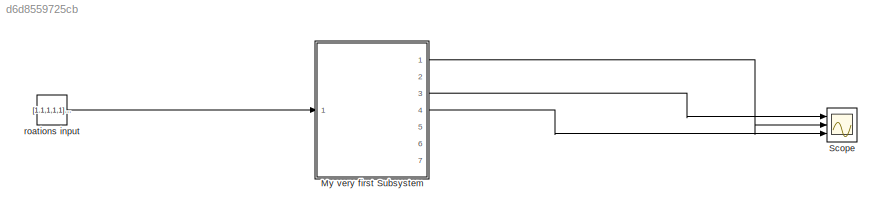
MODEL slx_d6d8559725cb
KIND model
CONFIG AbsTol = auto
CONFIG EnableMultiTasking = off
CONFIG FixedStep = auto
CONFIG InitFcn = create_vars;
CONFIG MaxStep = auto
CONFIG MinStep = auto
CONFIG RelTol = 1e-3
CONFIG SampleTimeConstraint = Unconstrained
CONFIG SolverName = VariableStepAuto
CONFIG StartTime = 0.0
CONFIG StopTime = 10.0
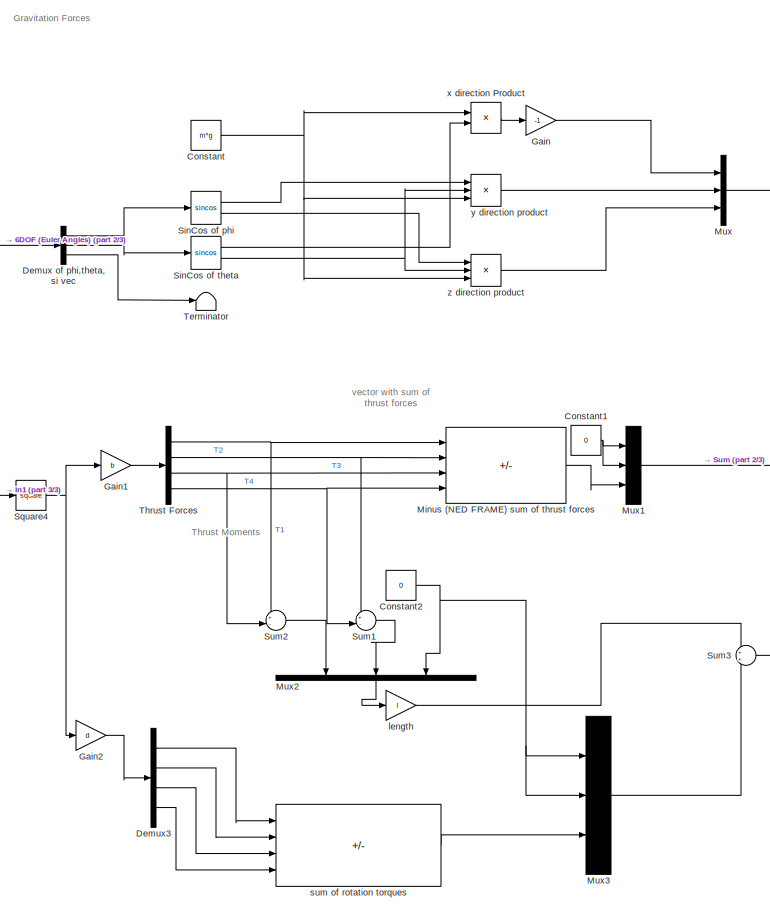
[diagram: My very first Subsystem - part 1/3, center side, full height]
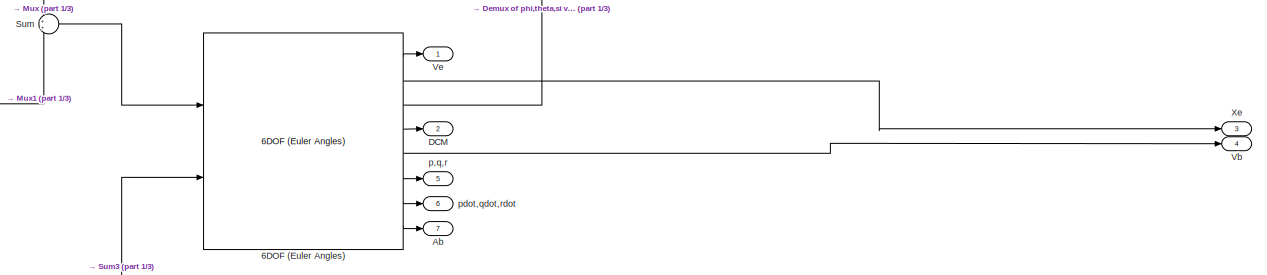
[diagram: My very first Subsystem - part 2/3, middle right region]
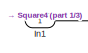
[diagram: My very first Subsystem - part 3/3, middle left region]
BLOCK [SubSystem] My very first Subsystem
  Ports = [1, 7]
  RequestExecContextInheritance = off
BLOCK [Reference] My very first Subsystem/6DOF (Euler Angles)  REF=shared6dof/6DOF (Euler Angles)
  Ports = [2, 8]
  SourceBlock = shared6dof/6DOF (Euler Angles)
  SourceProductBaseCode = AE,PW,DR,MT,VE
  SourceType = 6DOF EoM (Body Axis)
BLOCK [Outport] My very first Subsystem/Ab
  Port = 7
BLOCK [Constant] My very first Subsystem/Constant
  Value = m*g
BLOCK [Constant] My very first Subsystem/Constant1
  Value = 0
BLOCK [Constant] My very first Subsystem/Constant2
  Value = 0
BLOCK [Outport] My very first Subsystem/DCM
  Port = 2
BLOCK [Demux] My very first Subsystem/Demux of phi,theta,si vec
  Outputs = 3
  Ports = [1, 3]
BLOCK [Demux] My very first Subsystem/Demux3
  Ports = [1, 4]
BLOCK [Gain] My very first Subsystem/Gain
  Gain = -1
BLOCK [Gain] My very first Subsystem/Gain1
  Gain = b
BLOCK [Gain] My very first Subsystem/Gain2
  Gain = d
BLOCK [Inport] My very first Subsystem/In1
BLOCK [Sum] My very first Subsystem/Minus (NED FRAME) sum of thrust forces
  IconShape = rectangular
  Inputs = ----
  Ports = [4, 1]
BLOCK [Mux] My very first Subsystem/Mux
  DisplayOption = bar
  Inputs = 3
  Ports = [3, 1]
BLOCK [Mux] My very first Subsystem/Mux1
  DisplayOption = bar
  Inputs = 3
  Ports = [3, 1]
BLOCK [Mux] My very first Subsystem/Mux2
  DisplayOption = bar
  Inputs = 3
  NameLocation = left
  Ports = [3, 1]
BLOCK [Mux] My very first Subsystem/Mux3
  DisplayOption = bar
  Inputs = 3
  Ports = [3, 1]
BLOCK [Trigonometry] My very first Subsystem/SinCos of phi
  Operator = sincos
  Ports = [1, 2]
BLOCK [Trigonometry] My very first Subsystem/SinCos of theta
  Operator = sincos
  Ports = [1, 2]
BLOCK [Math] My very first Subsystem/Square4
  NameLocation = right
  Operator = square
  Ports = [1, 1]
BLOCK [Sum] My very first Subsystem/Sum
  Ports = [2, 1]
BLOCK [Sum] My very first Subsystem/Sum1
  Inputs = +-|
  Ports = [2, 1]
BLOCK [Sum] My very first Subsystem/Sum2
  Inputs = +-|
  Ports = [2, 1]
BLOCK [Sum] My very first Subsystem/Sum3
  Ports = [2, 1]
BLOCK [Terminator] My very first Subsystem/Terminator
BLOCK [Demux] My very first Subsystem/Thrust Forces
  Ports = [1, 4]
BLOCK [Outport] My very first Subsystem/Vb
  Port = 4
BLOCK [Outport] My very first Subsystem/Ve
BLOCK [Outport] My very first Subsystem/Xe
  Port = 3
BLOCK [Gain] My very first Subsystem/length
  Gain = l
BLOCK [Outport] My very first Subsystem/p,q,r
  Port = 5
BLOCK [Outport] My very first Subsystem/pdot,qdot,rdot
  Port = 6
BLOCK [Sum] My very first Subsystem/sum of rotation torques
  IconShape = rectangular
  Inputs = +-+-
  Ports = [4, 1]
BLOCK [Product] My very first Subsystem/x direction Product
  Ports = [2, 1]
BLOCK [Product] My very first Subsystem/y direction product
  Inputs = 3
  Ports = [3, 1]
BLOCK [Product] My very first Subsystem/z direction product
  Inputs = 3
  Ports = [3, 1]
BLOCK [Scope] Scope
  Floating = off
  NumInputPorts = 3
  Ports = [3]
  ScopeSpecificationString = Simulink.scopes.TimeScopeBlockCfg('CurrentConfiguration', extmgr.ConfigurationSet(extmgr.Configuration('Core','General UI',true),extmgr.Configuration('Core','Source UI',true),extmgr.Configuration('Sources','WiredSimulink',true),extmgr.Configuration('Visuals','Time Domain',true,'SerializedDisplays',{struct('MinYLimReal','-252.34714','MaxYLimReal','226.65112','YLabelReal','','MinYLimMag',' 0.00000',...<+3379ch>
BLOCK [Constant] roations input
  Value = [1.1,1,1,1]*sqrt((m*g)/(4*b))
ANNOTATION My very first Subsystem: Gravitation Forces
ANNOTATION My very first Subsystem: Thrust Moments
ANNOTATION My very first Subsystem: vector with sum of thrust forces
LINE My very first Subsystem/6DOF (Euler Angles):1 -> My very first Subsystem/Ve:1
LINE My very first Subsystem/6DOF (Euler Angles):2 -> My very first Subsystem/Xe:1
LINE My very first Subsystem/6DOF (Euler Angles):3 -> My very first Subsystem/Demux of phi,theta,si vec:1
LINE My very first Subsystem/6DOF (Euler Angles):4 -> My very first Subsystem/DCM:1
LINE My very first Subsystem/6DOF (Euler Angles):5 -> My very first Subsystem/Vb:1
LINE My very first Subsystem/6DOF (Euler Angles):6 -> My very first Subsystem/p,q,r:1
LINE My very first Subsystem/6DOF (Euler Angles):7 -> My very first Subsystem/pdot,qdot,rdot:1
LINE My very first Subsystem/6DOF (Euler Angles):8 -> My very first Subsystem/Ab:1
NET My very first Subsystem/Constant1:1 -> My very first Subsystem/Mux1:1, My very first Subsystem/Mux1:2
NET My very first Subsystem/Constant2:1 -> My very first Subsystem/Mux2:3, My very first Subsystem/Mux3:1, My very first Subsystem/Mux3:2
NET My very first Subsystem/Constant:1 -> My very first Subsystem/x direction Product:1, My very first Subsystem/y direction product:3, My very first Subsystem/z direction product:3
LINE My very first Subsystem/Demux of phi,theta,si vec:1 -> My very first Subsystem/SinCos of phi:1
LINE My very first Subsystem/Demux of phi,theta,si vec:2 -> My very first Subsystem/SinCos of theta:1
LINE My very first Subsystem/Demux of phi,theta,si vec:3 -> My very first Subsystem/Terminator:1
LINE My very first Subsystem/Demux3:1 -> My very first Subsystem/sum of rotation torques:1
LINE My very first Subsystem/Demux3:2 -> My very first Subsystem/sum of rotation torques:2
LINE My very first Subsystem/Demux3:3 -> My very first Subsystem/sum of rotation torques:3
LINE My very first Subsystem/Demux3:4 -> My very first Subsystem/sum of rotation torques:4
LINE My very first Subsystem/Gain1:1 -> My very first Subsystem/Thrust Forces:1
LINE My very first Subsystem/Gain2:1 -> My very first Subsystem/Demux3:1
LINE My very first Subsystem/Gain:1 -> My very first Subsystem/Mux:1
LINE My very first Subsystem/In1:1 -> My very first Subsystem/Square4:1
LINE My very first Subsystem/Minus (NED FRAME) sum of thrust forces:1 -> My very first Subsystem/Mux1:3
LINE My very first Subsystem/Mux1:1 -> My very first Subsystem/Sum:2
LINE My very first Subsystem/Mux2:1 -> My very first Subsystem/length:1
LINE My very first Subsystem/Mux3:1 -> My very first Subsystem/Sum3:2
LINE My very first Subsystem/Mux:1 -> My very first Subsystem/Sum:1
LINE My very first Subsystem/SinCos of phi:1 -> My very first Subsystem/y direction product:1
LINE My very first Subsystem/SinCos of phi:2 -> My very first Subsystem/z direction product:1
LINE My very first Subsystem/SinCos of theta:1 -> My very first Subsystem/x direction Product:2
NET My very first Subsystem/SinCos of theta:2 -> My very first Subsystem/y direction product:2, My very first Subsystem/z direction product:2
NET My very first Subsystem/Square4:1 -> My very first Subsystem/Gain1:1, My very first Subsystem/Gain2:1
LINE My very first Subsystem/Sum1:1 -> My very first Subsystem/Mux2:2
LINE My very first Subsystem/Sum2:1 -> My very first Subsystem/Mux2:1
LINE My very first Subsystem/Sum3:1 -> My very first Subsystem/6DOF (Euler Angles):2
LINE My very first Subsystem/Sum:1 -> My very first Subsystem/6DOF (Euler Angles):1
NET My very first Subsystem/Thrust Forces:1 -> My very first Subsystem/Minus (NED FRAME) sum of thrust forces:1, My very first Subsystem/Sum2:1
NET My very first Subsystem/Thrust Forces:2 -> My very first Subsystem/Minus (NED FRAME) sum of thrust forces:2, My very first Subsystem/Sum1:1
NET My very first Subsystem/Thrust Forces:3 -> My very first Subsystem/Minus (NED FRAME) sum of thrust forces:3, My very first Subsystem/Sum2:2
NET My very first Subsystem/Thrust Forces:4 -> My very first Subsystem/Minus (NED FRAME) sum of thrust forces:4, My very first Subsystem/Sum1:2
LINE My very first Subsystem/length:1 -> My very first Subsystem/Sum3:1
LINE My very first Subsystem/sum of rotation torques:1 -> My very first Subsystem/Mux3:3
LINE My very first Subsystem/x direction Product:1 -> My very first Subsystem/Gain:1
LINE My very first Subsystem/y direction product:1 -> My very first Subsystem/Mux:2
LINE My very first Subsystem/z direction product:1 -> My very first Subsystem/Mux:3
LINE My very first Subsystem:1 -> Scope:2
LINE My very first Subsystem:3 -> Scope:1
LINE My very first Subsystem:4 -> Scope:3
LINE roations input:1 -> My very first Subsystem:1
note: NET lines group one-source signal fan-out (src -> all destinations, sorted); 1:1 wires keep LINE
